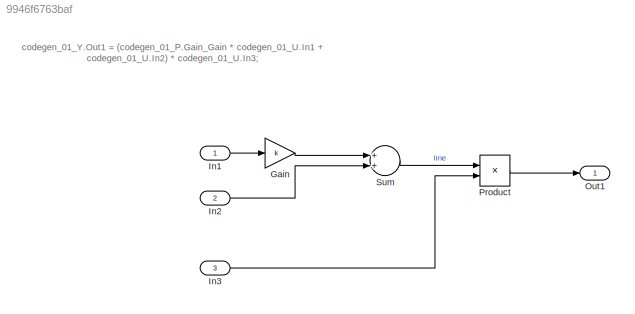
MODEL slx_9946f6763baf
KIND model
CONFIG InitFcn = k = 5;
BLOCK [Gain] Gain
  Gain = k
  OutDataTypeStr = Inherit: Inherit via internal rule
  ParamDataTypeStr = Inherit: Inherit via internal rule
  SaturateOnIntegerOverflow = off
BLOCK [Inport] In1
  IconDisplay = Port number
BLOCK [Inport] In2
  IconDisplay = Port number
  Port = 2
BLOCK [Inport] In3
  IconDisplay = Port number
  Port = 3
BLOCK [Outport] Out1
  IconDisplay = Port number
BLOCK [Product] Product
  InputSameDT = off
  OutDataTypeStr = Inherit: Inherit via internal rule
  Ports = [2, 1]
  RndMeth = Floor
  SaturateOnIntegerOverflow = off
BLOCK [Sum] Sum
  InputSameDT = off
  OutDataTypeStr = Inherit: Inherit via internal rule
  Ports = [2, 1]
  SaturateOnIntegerOverflow = off
ANNOTATION (root): codegen_01_Y.Out1 = (codegen_01_P.Gain_Gain * codegen_01_U.In1 + codegen_01_U.In2) * codegen_01_U.In3;
LINE Gain:1 -> Sum:1
LINE In1:1 -> Gain:1
LINE In2:1 -> Sum:2
LINE In3:1 -> Product:2
LINE Product:1 -> Out1:1
LINE Sum:1 -> Product:1
